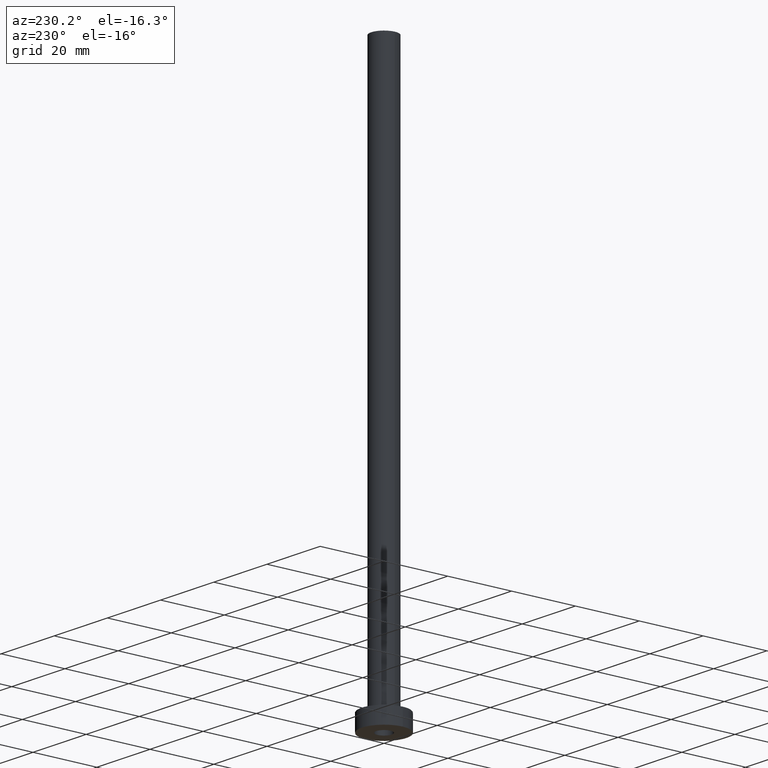
[diagram: clean part render]
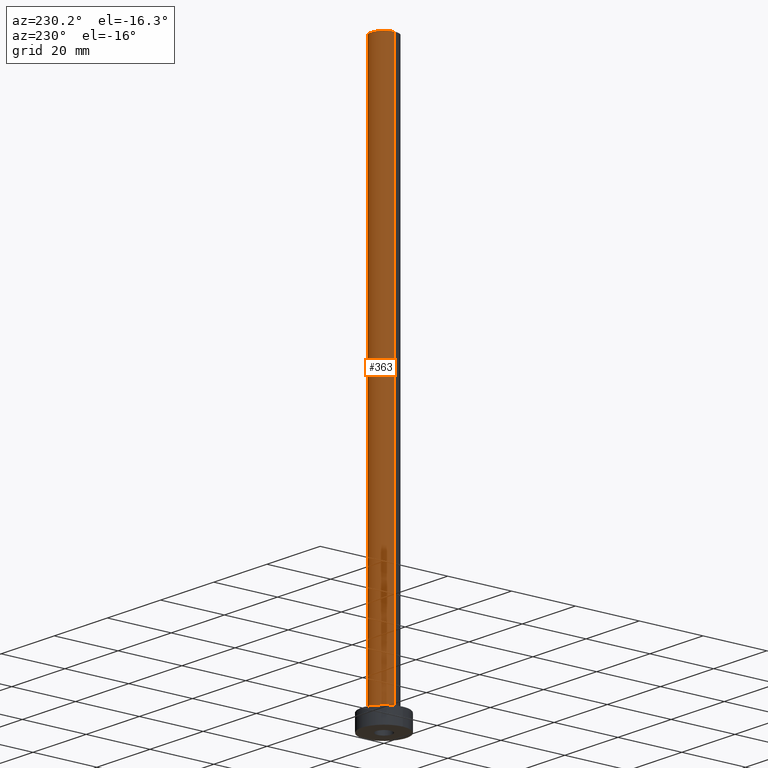
[diagram: same view with one face highlighted and labeled with its STEP entity id]
A machine part, auxiliary view. The second image highlights one B-rep face of the part: STEP entity #363.
In plain terms, the highlighted cylindrical surface (edge-blend (fillet) strip) has radius 4 mm, axis along (-0, -0, -1).
Its self-contained STEP definition (entity closure, byte-faithful):
#7 = VERTEX_POINT ( 'NONE', #59 ) ;
#8 = EDGE_CURVE ( 'NONE', #385, #7, #78, .T. ) ;
#10 = EDGE_CURVE ( 'NONE', #245, #385, #297, .T. ) ;
#22 = AXIS2_PLACEMENT_3D ( 'NONE', #76, #362, #397 ) ;
#28 = CARTESIAN_POINT ( 'NONE',  ( 4.000000000000000000, 4.898587196589412829E-16, 175.0000000000000284 ) ) ;
#41 = ORIENTED_EDGE ( 'NONE', *, *, #330, .F. ) ;
#49 = VECTOR ( 'NONE', #427, 1000.000000000000000 ) ;
#59 = CARTESIAN_POINT ( 'NONE',  ( -4.000000000000000000, 0.000000000000000000, 5.500000000000005329 ) ) ;
#76 = CARTESIAN_POINT ( 'NONE',  ( 0.000000000000000000, 0.000000000000000000, 175.0000000000000284 ) ) ;
#78 = CIRCLE ( 'NONE', #266, 4.000000000000000000 ) ;
#139 = DIRECTION ( 'NONE',  ( -0.000000000000000000, -0.000000000000000000, -1.000000000000000000 ) ) ;
#142 = CYLINDRICAL_SURFACE ( 'NONE', #370, 4.000000000000000000 ) ;
#143 = CARTESIAN_POINT ( 'NONE',  ( 0.000000000000000000, 0.000000000000000000, 5.500000000000005329 ) ) ;
#168 = EDGE_LOOP ( 'NONE', ( #406, #249, #309, #41 ) ) ;
#183 = CARTESIAN_POINT ( 'NONE',  ( 4.000000000000000000, 4.898587196589412829E-16, 175.0000000000000284 ) ) ;
#223 = DIRECTION ( 'NONE',  ( -0.000000000000000000, -0.000000000000000000, -1.000000000000000000 ) ) ;
#238 = VECTOR ( 'NONE', #139, 1000.000000000000000 ) ;
#245 = VERTEX_POINT ( 'NONE', #28 ) ;
#249 = ORIENTED_EDGE ( 'NONE', *, *, #10, .T. ) ;
#258 = DIRECTION ( 'NONE',  ( 0.000000000000000000, 0.000000000000000000, 1.000000000000000000 ) ) ;
#261 = DIRECTION ( 'NONE',  ( 1.000000000000000000, 0.000000000000000000, 0.000000000000000000 ) ) ;
#266 = AXIS2_PLACEMENT_3D ( 'NONE', #143, #258, #261 ) ;
#281 = CARTESIAN_POINT ( 'NONE',  ( 0.000000000000000000, 0.000000000000000000, 175.0000000000000284 ) ) ;
#293 = CARTESIAN_POINT ( 'NONE',  ( -4.000000000000000000, 0.000000000000000000, 175.0000000000000284 ) ) ;
#297 = LINE ( 'NONE', #183, #49 ) ;
#309 = ORIENTED_EDGE ( 'NONE', *, *, #8, .T. ) ;
#314 = FACE_OUTER_BOUND ( 'NONE', #168, .T. ) ;
#323 = CARTESIAN_POINT ( 'NONE',  ( 4.000000000000000000, 4.898587196589412829E-16, 5.500000000000005329 ) ) ;
#330 = EDGE_CURVE ( 'NONE', #440, #7, #404, .T. ) ;
#362 = DIRECTION ( 'NONE',  ( 0.000000000000000000, 0.000000000000000000, 1.000000000000000000 ) ) ;
#363 = ADVANCED_FACE ( 'NONE', ( #314 ), #142, .T. ) ;
#370 = AXIS2_PLACEMENT_3D ( 'NONE', #281, #223, #460 ) ;
#374 = CIRCLE ( 'NONE', #22, 4.000000000000000000 ) ;
#385 = VERTEX_POINT ( 'NONE', #323 ) ;
#397 = DIRECTION ( 'NONE',  ( 1.000000000000000000, 0.000000000000000000, 0.000000000000000000 ) ) ;
#401 = EDGE_CURVE ( 'NONE', #245, #440, #374, .T. ) ;
#404 = LINE ( 'NONE', #414, #238 ) ;
#406 = ORIENTED_EDGE ( 'NONE', *, *, #401, .F. ) ;
#414 = CARTESIAN_POINT ( 'NONE',  ( -4.000000000000000000, 0.000000000000000000, 175.0000000000000284 ) ) ;
#427 = DIRECTION ( 'NONE',  ( -0.000000000000000000, -0.000000000000000000, -1.000000000000000000 ) ) ;
#440 = VERTEX_POINT ( 'NONE', #293 ) ;
#460 = DIRECTION ( 'NONE',  ( -1.000000000000000000, 0.000000000000000000, 0.000000000000000000 ) ) ;